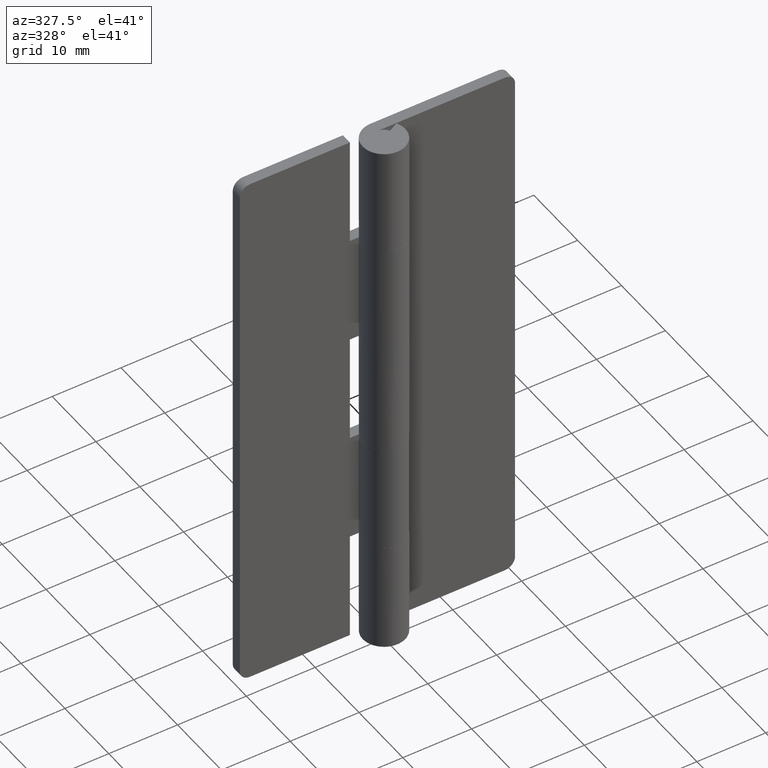
[diagram: clean part render]
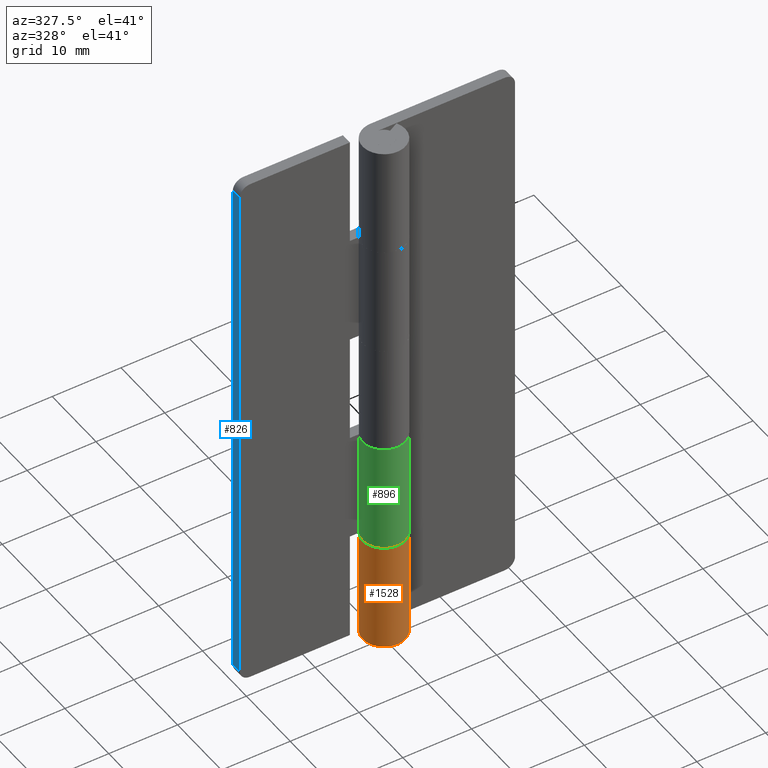
[diagram: same view with three faces highlighted in distinct colors, each labeled with its STEP entity id]
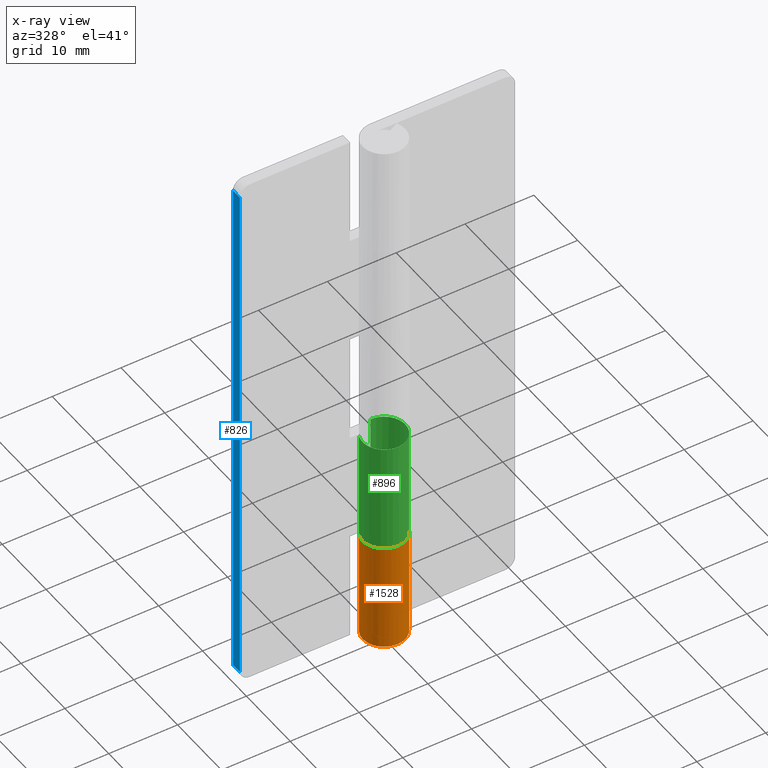
[diagram: x-ray of the same camera — body ghosted, the three highlighted faces saturated]
A machine part, auxiliary view with three faces highlighted in distinct colors.
The next image is the same camera in x-ray (body ghosted, the three faces saturated) — at least one of them is partly hidden behind the body in this view.
Their STEP definitions:

[orange] entity #1528 — the highlighted face is a freeform B-spline surface patch.
#1086=CARTESIAN_POINT('',(0.003521362805218,3.099998000000000,0.0));
#1087=VERTEX_POINT('',#1086);
#1093=CARTESIAN_POINT('',(0.003521362805218,3.099998000000000,16.0));
#1094=VERTEX_POINT('',#1093);
#1095=CARTESIAN_POINT('',(0.003521362805218,3.099998000000000,16.0));
#1096=CARTESIAN_POINT('',(0.003521362805218,3.099998000000000,0.0));
#1097=QUASI_UNIFORM_CURVE('',1,(#1095,#1096),.UNSPECIFIED.,.F.,.U.);
#1098=EDGE_CURVE('',#1094,#1087,#1097,.T.);
#1292=CARTESIAN_POINT('',(2.739981751764055,1.450000000000000,16.0));
#1293=VERTEX_POINT('',#1292);
#1299=CARTESIAN_POINT('',(2.739981751764055,1.450000000000000,0.0));
#1300=VERTEX_POINT('',#1299);
#1301=CARTESIAN_POINT('',(2.739981751764055,1.450000000000000,16.0));
#1302=CARTESIAN_POINT('',(2.739981751764055,1.450000000000000,0.0));
#1303=QUASI_UNIFORM_CURVE('',1,(#1301,#1302),.UNSPECIFIED.,.F.,.U.);
#1304=EDGE_CURVE('',#1293,#1300,#1303,.T.);
#1421=CARTESIAN_POINT('',(0.135220100832537,3.097049486903758,16.399999999999999));
#1422=CARTESIAN_POINT('',(0.135220100832537,3.097049486903758,-0.410000000000000));
#1423=CARTESIAN_POINT('',(-3.621801353257963,3.261084586116853,16.399999999999995));
#1424=CARTESIAN_POINT('',(-3.621801353257963,3.261084586116853,-0.410000000000000));
#1425=CARTESIAN_POINT('',(-3.065949176421941,-0.458209174501795,16.399999999999999));
#1426=CARTESIAN_POINT('',(-3.065949176421941,-0.458209174501795,-0.410000000000000));
#1427=CARTESIAN_POINT('',(-2.510096999585919,-4.177502935120442,16.399999999999995));
#1428=CARTESIAN_POINT('',(-2.510096999585919,-4.177502935120442,-0.410000000000000));
#1429=CARTESIAN_POINT('',(1.034801263624690,-2.922188622385752,16.399999999999999));
#1430=CARTESIAN_POINT('',(1.034801263624690,-2.922188622385752,-0.410000000000000));
#1431=CARTESIAN_POINT('',(4.579699526835299,-1.666874309651060,16.399999999999995));
#1432=CARTESIAN_POINT('',(4.579699526835299,-1.666874309651060,-0.410000000000000));
#1433=CARTESIAN_POINT('',(2.671050397368730,1.573368925178181,16.399999999999999));
#1434=CARTESIAN_POINT('',(2.671050397368730,1.573368925178181,-0.410000000000000));
#1442=(BOUNDED_SURFACE()B_SPLINE_SURFACE(1,2,((#1421,#1423,#1425,#1427,#1429,#1431,#1433),(#1422,#1424,#1426,#1428,#1430,#1432,#1434)),.UNSPECIFIED.,.F.,.F.,.U.)B_SPLINE_SURFACE_WITH_KNOTS((2,2),(3,2,2,3),(0.0,16.809999999999999),(0.0,5.848219672763139,11.696439345526279,17.544659018289419),.UNSPECIFIED.)GEOMETRIC_REPRESENTATION_ITEM()RATIONAL_B_SPLINE_SURFACE(((1.0,0.636078220277764,1.0,0.636078220277764,1.0,0.636078220277764,1.0),(1.0,0.636078220277764,1.0,0.636078220277764,1.0,0.636078220277764,1.0)))REPRESENTATION_ITEM('')SURFACE());
#1443=CARTESIAN_POINT('',(0.0,3.099998000000000,16.0));
#1444=VERTEX_POINT('',#1443);
#1445=CARTESIAN_POINT('',(0.0,3.099998000000000,16.0));
#1446=CARTESIAN_POINT('',(0.003521362805218,3.099998000000000,16.0));
#1447=QUASI_UNIFORM_CURVE('',1,(#1445,#1446),.UNSPECIFIED.,.F.,.U.);
#1448=EDGE_CURVE('',#1444,#1094,#1447,.T.);
#1449=ORIENTED_EDGE('',*,*,#1448,.T.);
#1450=ORIENTED_EDGE('',*,*,#1098,.T.);
#1451=CARTESIAN_POINT('',(-1.600727473712045,-2.654745101681789,0.0));
#1452=VERTEX_POINT('',#1451);
#1453=CARTESIAN_POINT('',(-1.600727473712045,-2.654745101681789,0.0));
#1454=CARTESIAN_POINT('',(-1.816468976001383,-2.524727771152445,0.0));
#1455=CARTESIAN_POINT('',(-2.149350912157642,-2.263853157017689,0.0));
#1456=CARTESIAN_POINT('',(-2.530648132923804,-1.814038984515914,0.0));
#1457=CARTESIAN_POINT('',(-2.845084038014649,-1.290432391264358,0.0));
#1458=CARTESIAN_POINT('',(-3.049348743203671,-0.688949311712164,0.0));
#1459=CARTESIAN_POINT('',(-3.119260177890681,-0.018045342047731,0.0));
#1460=CARTESIAN_POINT('',(-3.066730298411546,0.570370858674867,0.0));
#1461=CARTESIAN_POINT('',(-2.879044358042622,1.218240541207695,0.0));
#1462=CARTESIAN_POINT('',(-2.499791349143879,1.903781865733829,0.0));
#1463=CARTESIAN_POINT('',(-1.941718706523491,2.456869269026804,0.0));
#1464=CARTESIAN_POINT('',(-1.343985599032492,2.812697171607966,0.0));
#1465=CARTESIAN_POINT('',(-0.731158255270875,3.039437554191613,0.0));
#1466=CARTESIAN_POINT('',(-0.269355301147950,3.100405449362758,0.0));
#1467=CARTESIAN_POINT('',(0.003521362805218,3.099998000000000,0.0));
#1468=B_SPLINE_CURVE_WITH_KNOTS('',3,(#1453,#1454,#1455,#1456,#1457,#1458,#1459,#1460,#1461,#1462,#1463,#1464,#1465,#1466,#1467),.UNSPECIFIED.,.F.,.U.,(4,1,1,1,1,1,1,1,1,1,1,1,4),(0.000000054533924,0.755668176142312,1.259445452828312,1.763236248734433,2.581904605030631,3.148683665814984,3.778384464326467,4.345111696763080,5.163778307789944,6.108379641693805,6.675154743638816,7.241926710557042,8.060539298898449),.UNSPECIFIED.);
#1469=EDGE_CURVE('',#1452,#1087,#1468,.T.);
#1470=ORIENTED_EDGE('',*,*,#1469,.F.);
#1471=CARTESIAN_POINT('',(2.739981751764055,1.450000000000000,0.0));
#1472=CARTESIAN_POINT('',(2.897251817090183,1.153225028729755,0.0));
#1473=CARTESIAN_POINT('',(3.059557401130622,0.669317296857961,0.0));
#1474=CARTESIAN_POINT('',(3.118772814203659,-0.065429240892450,0.0));
#1475=CARTESIAN_POINT('',(3.050010528982488,-0.674102014295201,0.0));
#1476=CARTESIAN_POINT('',(2.820422489679004,-1.353761208683221,0.0));
#1477=CARTESIAN_POINT('',(2.438401522486094,-1.963953588681949,0.0));
#1478=CARTESIAN_POINT('',(1.951992172764008,-2.433248688322325,0.0));
#1479=CARTESIAN_POINT('',(1.457024942464522,-2.753742855336531,0.0));
#1480=CARTESIAN_POINT('',(0.875096262959893,-3.001232935321069,0.0));
#1481=CARTESIAN_POINT('',(0.145757423581992,-3.132872544439959,0.0));
#1482=CARTESIAN_POINT('',(-0.740313275944062,-3.056876713567172,0.0));
#1483=CARTESIAN_POINT('',(-1.313207077846037,-2.828342149395632,0.0));
#1484=CARTESIAN_POINT('',(-1.600727473712045,-2.654745101681789,0.0));
#1485=B_SPLINE_CURVE_WITH_KNOTS('',3,(#1471,#1472,#1473,#1474,#1475,#1476,#1477,#1478,#1479,#1480,#1481,#1482,#1483,#1484),.UNSPECIFIED.,.F.,.U.,(4,1,1,1,1,1,1,1,1,1,1,4),(0.000000054536336,1.007536964352862,1.511342484934378,2.204059705826198,2.833797969669258,3.652447915034136,4.345112782244737,4.848883444814748,5.415655553316283,6.234328922577372,7.052990203031580,8.060541312538149),.UNSPECIFIED.);
#1486=EDGE_CURVE('',#1300,#1452,#1485,.T.);
#1487=ORIENTED_EDGE('',*,*,#1486,.F.);
#1488=ORIENTED_EDGE('',*,*,#1304,.F.);
#1489=CARTESIAN_POINT('',(-1.599217508353684,-2.655655977773081,16.0));
#1490=VERTEX_POINT('',#1489);
#1491=CARTESIAN_POINT('',(-1.599217508353684,-2.655655977773081,16.0));
#1492=CARTESIAN_POINT('',(-1.383509162904725,-2.785621555780497,16.0));
#1493=CARTESIAN_POINT('',(-0.997417453707372,-2.957992868234037,16.0));
#1494=CARTESIAN_POINT('',(-0.277759335364555,-3.116868651779861,15.999999999999970));
#1495=CARTESIAN_POINT('',(0.422693409526198,-3.105265336867545,16.000000000000082));
#1496=CARTESIAN_POINT('',(1.235901042647123,-2.879952818502241,15.999999999999901));
#1497=CARTESIAN_POINT('',(1.934340018659261,-2.476204653644719,16.000000000000121));
#1498=CARTESIAN_POINT('',(2.475150849620606,-1.909598325095263,15.999999999999840));
#1499=CARTESIAN_POINT('',(2.810372557863739,-1.348865675779093,16.000000000000099));
#1500=CARTESIAN_POINT('',(3.001380877217748,-0.835306163067930,16.000000000000082));
#1501=CARTESIAN_POINT('',(3.108951721310628,-0.255650438323959,15.999999999999860));
#1502=CARTESIAN_POINT('',(3.101669019590508,0.525683971454741,16.000000000000149));
#1503=CARTESIAN_POINT('',(2.916962303822370,1.116222964969923,15.999999999999920));
#1504=CARTESIAN_POINT('',(2.739981751764055,1.450000000000000,16.0));
#1505=B_SPLINE_CURVE_WITH_KNOTS('',3,(#1491,#1492,#1493,#1494,#1495,#1496,#1497,#1498,#1499,#1500,#1501,#1502,#1503,#1504),.UNSPECIFIED.,.F.,.U.,(4,1,1,1,1,1,1,1,1,1,1,4),(0.000000054748257,0.755503122181923,1.259170415774324,2.203577802971861,2.833178364343740,3.777559311976923,4.595982985289097,5.162650564803673,5.729285887819607,6.232965835810663,6.925517842417783,8.058778940349455),.UNSPECIFIED.);
#1506=EDGE_CURVE('',#1490,#1293,#1505,.T.);
#1507=ORIENTED_EDGE('',*,*,#1506,.F.);
#1508=CARTESIAN_POINT('',(0.0,3.099998000000000,16.0));
#1509=CARTESIAN_POINT('',(-0.377801504359861,3.100323942630197,16.0));
#1510=CARTESIAN_POINT('',(-0.923175762496621,2.998998525486901,16.000000000000028));
#1511=CARTESIAN_POINT('',(-1.625758124773753,2.662299154858119,15.999999999999959));
#1512=CARTESIAN_POINT('',(-2.083181009651324,2.321931593820087,16.000000000000071));
#1513=CARTESIAN_POINT('',(-2.508242315765930,1.854646707654292,15.999999999999989));
#1514=CARTESIAN_POINT('',(-2.792953872889352,1.385208374890579,15.999999999999920));
#1515=CARTESIAN_POINT('',(-3.001792646920881,0.834377187050026,16.000000000000210));
#1516=CARTESIAN_POINT('',(-3.105244751071003,0.295788060784377,15.999999999999700));
#1517=CARTESIAN_POINT('',(-3.103093431906672,-0.420752097375445,16.000000000000188));
#1518=CARTESIAN_POINT('',(-2.931948862953188,-1.100114462761137,15.999999999999609));
#1519=CARTESIAN_POINT('',(-2.623961648504493,-1.676305370736975,16.000000000000089));
#1520=CARTESIAN_POINT('',(-2.227714204598476,-2.194349253804961,16.000000000000028));
#1521=CARTESIAN_POINT('',(-1.868989657178052,-2.493398520803934,15.999999999999989));
#1522=CARTESIAN_POINT('',(-1.599217508353684,-2.655655977773081,16.0));
#1523=B_SPLINE_CURVE_WITH_KNOTS('',3,(#1508,#1509,#1510,#1511,#1512,#1513,#1514,#1515,#1516,#1517,#1518,#1519,#1520,#1521,#1522),.UNSPECIFIED.,.F.,.U.,(4,1,1,1,1,1,1,1,1,1,1,1,4),(0.000000054589251,1.133239672109037,1.636929472751245,2.329502368501404,2.833178969192431,3.525740727440543,3.966431671419781,4.595983965754101,5.162651666083818,6.107046921715348,6.673698358013564,7.114416763554964,8.058780660094422),.UNSPECIFIED.);
#1524=EDGE_CURVE('',#1444,#1490,#1523,.T.);
#1525=ORIENTED_EDGE('',*,*,#1524,.F.);
#1526=EDGE_LOOP('',(#1449,#1450,#1470,#1487,#1488,#1507,#1525));
#1527=FACE_OUTER_BOUND('',#1526,.T.);
#1528=ADVANCED_FACE('',(#1527),#1442,.T.);

[blue] entity #826 — the highlighted face is a freeform B-spline surface patch.
#340=CARTESIAN_POINT('',(-20.000008000000001,1.500000000000000,78.499992999999890));
#341=VERTEX_POINT('',#340);
#353=CARTESIAN_POINT('',(-20.000008000000001,1.500000000000000,1.499999999999946));
#354=VERTEX_POINT('',#353);
#355=CARTESIAN_POINT('',(-20.000008000000001,1.500000000000000,78.499992999999890));
#356=CARTESIAN_POINT('',(-20.000008000000001,1.500000000000000,1.499999999999946));
#357=QUASI_UNIFORM_CURVE('',1,(#355,#356),.UNSPECIFIED.,.F.,.U.);
#358=EDGE_CURVE('',#341,#354,#357,.T.);
#480=CARTESIAN_POINT('',(-20.000008000000001,3.099998000000000,78.499992999999890));
#481=VERTEX_POINT('',#480);
#496=CARTESIAN_POINT('',(-20.000008000000001,1.500000000000000,78.499992999999890));
#497=CARTESIAN_POINT('',(-20.000008000000001,3.099998000000000,78.499992999999890));
#498=QUASI_UNIFORM_CURVE('',1,(#496,#497),.UNSPECIFIED.,.F.,.U.);
#499=EDGE_CURVE('',#341,#481,#498,.T.);
#526=CARTESIAN_POINT('',(-20.000008000000001,3.099998000000000,1.499999999999946));
#527=VERTEX_POINT('',#526);
#545=CARTESIAN_POINT('',(-20.000008000000001,3.099998000000000,1.499999999999946));
#546=CARTESIAN_POINT('',(-20.000008000000001,1.500000000000000,1.499999999999946));
#547=QUASI_UNIFORM_CURVE('',1,(#545,#546),.UNSPECIFIED.,.F.,.U.);
#548=EDGE_CURVE('',#527,#354,#547,.T.);
#811=CARTESIAN_POINT('',(-20.000008000000001,1.420080103001106,82.346142501108986));
#812=CARTESIAN_POINT('',(-20.000008000000001,1.420080103001106,-2.346151566409879));
#813=CARTESIAN_POINT('',(-20.000008000000001,3.179917939914184,82.346142501108986));
#814=CARTESIAN_POINT('',(-20.000008000000001,3.179917939914184,-2.346151566409879));
#815=B_SPLINE_SURFACE_WITH_KNOTS('',1,1,((#811,#813),(#812,#814)),.UNSPECIFIED.,.F.,.F.,.U.,(2,2),(2,2),(0.0,84.692294067518858),(0.041708334948495,0.958291687403247),.UNSPECIFIED.);
#816=CARTESIAN_POINT('',(-20.000008000000001,3.099998000000000,78.499992999999890));
#817=CARTESIAN_POINT('',(-20.000008000000001,3.099998000000000,1.499999999999946));
#818=QUASI_UNIFORM_CURVE('',1,(#816,#817),.UNSPECIFIED.,.F.,.U.);
#819=EDGE_CURVE('',#481,#527,#818,.T.);
#820=ORIENTED_EDGE('',*,*,#819,.T.);
#821=ORIENTED_EDGE('',*,*,#548,.T.);
#822=ORIENTED_EDGE('',*,*,#358,.F.);
#823=ORIENTED_EDGE('',*,*,#499,.T.);
#824=EDGE_LOOP('',(#820,#821,#822,#823));
#825=FACE_OUTER_BOUND('',#824,.T.);
#826=ADVANCED_FACE('',(#825),#815,.F.);

[green] entity #896 — the highlighted face is a freeform B-spline surface patch.
#55=CARTESIAN_POINT('',(-2.739981751764050,1.450000000000000,16.0));
#56=VERTEX_POINT('',#55);
#62=CARTESIAN_POINT('',(-2.739981751764050,1.450000000000000,31.999992999999812));
#63=VERTEX_POINT('',#62);
#64=CARTESIAN_POINT('',(-2.739981751764050,1.450000000000000,31.999992999999812));
#65=CARTESIAN_POINT('',(-2.739981751764050,1.450000000000000,16.0));
#66=QUASI_UNIFORM_CURVE('',1,(#64,#65),.UNSPECIFIED.,.F.,.U.);
#67=EDGE_CURVE('',#63,#56,#66,.T.);
#415=CARTESIAN_POINT('',(0.003521362805218,3.099998000000000,16.0));
#416=VERTEX_POINT('',#415);
#422=CARTESIAN_POINT('',(1.597709129052643,-2.656562730097268,16.0));
#423=VERTEX_POINT('',#422);
#424=CARTESIAN_POINT('',(0.003521362805218,3.099998000000000,16.0));
#425=CARTESIAN_POINT('',(0.381237491174275,3.099888172543588,15.999999999999970));
#426=CARTESIAN_POINT('',(0.926388699939925,2.998011602709137,16.000000000000060));
#427=CARTESIAN_POINT('',(1.590491955071112,2.678850038829064,15.999999999999950));
#428=CARTESIAN_POINT('',(2.019067247197512,2.372634884578910,16.000000000000028));
#429=CARTESIAN_POINT('',(2.403120854464372,1.982665988545145,15.999999999999989));
#430=CARTESIAN_POINT('',(2.762794998867979,1.462881976978051,16.000000000000028));
#431=CARTESIAN_POINT('',(2.999369593988605,0.873692223620910,16.000000000000011));
#432=CARTESIAN_POINT('',(3.105287975707082,0.251119051507192,15.999999999999970));
#433=CARTESIAN_POINT('',(3.102903111187930,-0.380968385949257,15.999999999999870));
#434=CARTESIAN_POINT('',(2.945489777672019,-1.061449715666885,16.000000000000210));
#435=CARTESIAN_POINT('',(2.648466482663143,-1.644676497055694,15.999999999999821));
#436=CARTESIAN_POINT('',(2.226328209158372,-2.195719533268882,16.000000000000171));
#437=CARTESIAN_POINT('',(1.867517573415093,-2.494496477249610,15.999999999999440));
#438=CARTESIAN_POINT('',(1.597709129052643,-2.656562730097268,16.0));
#439=B_SPLINE_CURVE_WITH_KNOTS('',3,(#424,#425,#426,#427,#428,#429,#430,#431,#432,#433,#434,#435,#436,#437,#438),.UNSPECIFIED.,.F.,.U.,(4,1,1,1,1,1,1,1,1,1,1,1,4),(0.000000054530553,1.132992068887159,1.636571797701551,2.203096774530422,2.706658673230460,3.273200108315522,4.091452337462097,4.594979722439152,5.161523579512743,5.979817152530965,6.672240105029941,7.112862195059211,8.057019766433543),.UNSPECIFIED.);
#440=EDGE_CURVE('',#416,#423,#439,.T.);
#442=CARTESIAN_POINT('',(1.597709129052643,-2.656562730097268,16.0));
#443=CARTESIAN_POINT('',(1.274187551282994,-2.851526424869369,15.999999999999970));
#444=CARTESIAN_POINT('',(0.754732983597935,-3.045707714350812,16.000000000000082));
#445=CARTESIAN_POINT('',(-0.062626462625164,-3.123406060613748,15.999999999999901));
#446=CARTESIAN_POINT('',(-0.693106174252946,-3.048362239979162,16.000000000000242));
#447=CARTESIAN_POINT('',(-1.368042875702100,-2.808228054624494,15.999999999999771));
#448=CARTESIAN_POINT('',(-1.906978299112488,-2.474118140665932,16.000000000000242));
#449=CARTESIAN_POINT('',(-2.422163084722289,-1.976351408561049,15.999999999999680));
#450=CARTESIAN_POINT('',(-2.781347051421225,-1.427329392556153,16.000000000000629));
#451=CARTESIAN_POINT('',(-3.001503583749174,-0.834798640667410,15.999999999999529));
#452=CARTESIAN_POINT('',(-3.108958900104275,-0.255265482722011,16.000000000000359));
#453=CARTESIAN_POINT('',(-3.101657935122654,0.525907635567187,15.999999999999700));
#454=CARTESIAN_POINT('',(-2.916889751455011,1.116287767716915,16.000000000000110));
#455=CARTESIAN_POINT('',(-2.739981751764050,1.450000000000000,16.0));
#456=B_SPLINE_CURVE_WITH_KNOTS('',3,(#442,#443,#444,#445,#446,#447,#448,#449,#450,#451,#452,#453,#454,#455),.UNSPECIFIED.,.F.,.U.,(4,1,1,1,1,1,1,1,1,1,1,4),(0.000000054529212,1.132991786035016,1.636571389108347,2.454887319993847,3.021411767440330,3.776733769497745,4.343213359251301,5.161522290836083,5.728033799336261,6.231603666703613,6.924004337262311,8.057017754866310),.UNSPECIFIED.);
#457=EDGE_CURVE('',#423,#56,#456,.T.);
#624=CARTESIAN_POINT('',(1.597709129052643,-2.656562730097268,31.999992999999812));
#625=VERTEX_POINT('',#624);
#626=CARTESIAN_POINT('',(1.597709129052643,-2.656562730097268,31.999992999999812));
#627=CARTESIAN_POINT('',(1.346043372890315,-2.808048747999229,31.999992999999730));
#628=CARTESIAN_POINT('',(0.779703893745381,-3.046880536820686,31.999992999999900));
#629=CARTESIAN_POINT('',(-0.001287908139599,-3.129243471664537,31.999992999999769));
#630=CARTESIAN_POINT('',(-0.648491938879743,-3.045332345914066,31.999992999999890));
#631=CARTESIAN_POINT('',(-1.273689349988551,-2.858254550987068,31.999992999999751));
#632=CARTESIAN_POINT('',(-1.935079546433345,-2.475597379297490,31.999992999999819));
#633=CARTESIAN_POINT('',(-2.475617430943418,-1.908972635663402,31.999992999999819));
#634=CARTESIAN_POINT('',(-2.810640477010030,-1.348288066330104,31.999992999999819));
#635=CARTESIAN_POINT('',(-3.016212824062897,-0.795313054452644,31.999992999999790));
#636=CARTESIAN_POINT('',(-3.112042318283326,-0.212627659630430,31.999992999999840));
#637=CARTESIAN_POINT('',(-3.088823607240129,0.566612174540125,31.999992999999801));
#638=CARTESIAN_POINT('',(-2.916962538314068,1.116304189951486,31.999992999999812));
#639=CARTESIAN_POINT('',(-2.739981751764050,1.450000000000000,31.999992999999812));
#640=B_SPLINE_CURVE_WITH_KNOTS('',3,(#626,#627,#628,#629,#630,#631,#632,#633,#634,#635,#636,#637,#638,#639),.UNSPECIFIED.,.F.,.U.,(4,1,1,1,1,1,1,1,1,1,1,4),(0.000000054528855,0.881211742915724,1.825413991229727,2.328992770526211,2.832559176808272,3.776733769497579,4.594978575235260,5.161522290836001,5.728033799336199,6.357492828825360,6.924004337262286,8.057017754866305),.UNSPECIFIED.);
#641=EDGE_CURVE('',#625,#63,#640,.T.);
#643=CARTESIAN_POINT('',(0.003521362805218,3.099998000000050,31.999992999999812));
#644=VERTEX_POINT('',#643);
#645=CARTESIAN_POINT('',(0.003521362805218,3.099998000000050,31.999992999999812));
#646=CARTESIAN_POINT('',(0.339249934445893,3.099812299651804,31.999992999999840));
#647=CARTESIAN_POINT('',(0.842544799528514,3.016406327908557,31.999992999999758));
#648=CARTESIAN_POINT('',(1.557768099799668,2.707913205732483,31.999992999999868));
#649=CARTESIAN_POINT('',(2.177793496575193,2.265020888623676,31.999992999999812));
#650=CARTESIAN_POINT('',(2.649942644144262,1.664221614564079,31.999992999999641));
#651=CARTESIAN_POINT('',(2.949898479317971,1.014367596203131,31.999993000000298));
#652=CARTESIAN_POINT('',(3.090240435412682,0.440155782084778,31.999992999999360));
#653=CARTESIAN_POINT('',(3.117408261993453,-0.296806475098751,31.999992999999460));
#654=CARTESIAN_POINT('',(2.964712761246429,-1.023828460693733,31.999992999999701));
#655=CARTESIAN_POINT('',(2.648456203396560,-1.644674522336724,31.999992999999741));
#656=CARTESIAN_POINT('',(2.226328541480820,-2.195720062287339,31.999992999999971));
#657=CARTESIAN_POINT('',(1.867516815334549,-2.494496224938735,31.999992999999691));
#658=CARTESIAN_POINT('',(1.597709129052643,-2.656562730097268,31.999992999999812));
#659=B_SPLINE_CURVE_WITH_KNOTS('',3,(#645,#646,#647,#648,#649,#650,#651,#652,#653,#654,#655,#656,#657,#658),.UNSPECIFIED.,.F.,.U.,(4,1,1,1,1,1,1,1,1,1,1,4),(0.000000054529045,1.007096805512177,1.510682199447971,2.328993352004259,3.273200108314596,3.776734712403306,4.469095434978849,5.035620849422865,5.979817152530504,6.672240105029635,7.112862195059009,8.057019766433603),.UNSPECIFIED.);
#660=EDGE_CURVE('',#644,#625,#659,.T.);
#862=CARTESIAN_POINT('',(-2.696366914693334,1.529576889648620,32.399992824999799));
#863=CARTESIAN_POINT('',(-2.696366914693334,1.529576889648620,15.590000179375000));
#864=CARTESIAN_POINT('',(-4.562928086201011,-1.760832256282393,32.399992824999792));
#865=CARTESIAN_POINT('',(-4.562928086201011,-1.760832256282393,15.590000179375004));
#866=CARTESIAN_POINT('',(-0.969870014465328,-2.944376360970353,32.399992824999799));
#867=CARTESIAN_POINT('',(-0.969870014465328,-2.944376360970353,15.590000179375000));
#868=CARTESIAN_POINT('',(2.623188057270354,-4.127920465658312,32.399992824999792));
#869=CARTESIAN_POINT('',(2.623188057270354,-4.127920465658312,15.590000179375004));
#870=CARTESIAN_POINT('',(3.077558048553901,-0.372339170355606,32.399992824999799));
#871=CARTESIAN_POINT('',(3.077558048553901,-0.372339170355606,15.590000179375000));
#872=CARTESIAN_POINT('',(3.531928039837448,3.383242124947101,32.399992824999792));
#873=CARTESIAN_POINT('',(3.531928039837448,3.383242124947101,15.590000179375004));
#874=CARTESIAN_POINT('',(-0.239712532219244,3.090718023679455,32.399992824999799));
#875=CARTESIAN_POINT('',(-0.239712532219244,3.090718023679455,15.590000179375000));
#883=(BOUNDED_SURFACE()B_SPLINE_SURFACE(1,2,((#862,#864,#866,#868,#870,#872,#874),(#863,#865,#867,#869,#871,#873,#875)),.UNSPECIFIED.,.F.,.F.,.U.)B_SPLINE_SURFACE_WITH_KNOTS((2,2),(3,2,2,3),(0.0,16.809992645624799),(0.0,5.870281529289077,11.740563058578150,17.610844587867231),.UNSPECIFIED.)GEOMETRIC_REPRESENTATION_ITEM()RATIONAL_B_SPLINE_SURFACE(((1.0,0.633830967398710,1.0,0.633830967398710,1.0,0.633830967398710,1.0),(1.0,0.633830967398710,1.0,0.633830967398710,1.0,0.633830967398710,1.0)))REPRESENTATION_ITEM('')SURFACE());
#884=ORIENTED_EDGE('',*,*,#67,.T.);
#885=ORIENTED_EDGE('',*,*,#457,.F.);
#886=ORIENTED_EDGE('',*,*,#440,.F.);
#887=CARTESIAN_POINT('',(0.003521362805218,3.099998000000050,31.999992999999812));
#888=CARTESIAN_POINT('',(0.003521362805218,3.099998000000000,16.0));
#889=QUASI_UNIFORM_CURVE('',1,(#887,#888),.UNSPECIFIED.,.F.,.U.);
#890=EDGE_CURVE('',#644,#416,#889,.T.);
#891=ORIENTED_EDGE('',*,*,#890,.F.);
#892=ORIENTED_EDGE('',*,*,#660,.T.);
#893=ORIENTED_EDGE('',*,*,#641,.T.);
#894=EDGE_LOOP('',(#884,#885,#886,#891,#892,#893));
#895=FACE_OUTER_BOUND('',#894,.T.);
#896=ADVANCED_FACE('',(#895),#883,.T.);